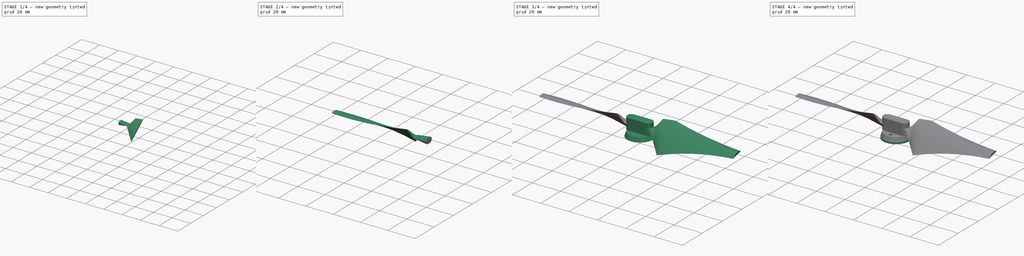
[diagram: build sequence overview — one tinted view per stage of 4, left to right]
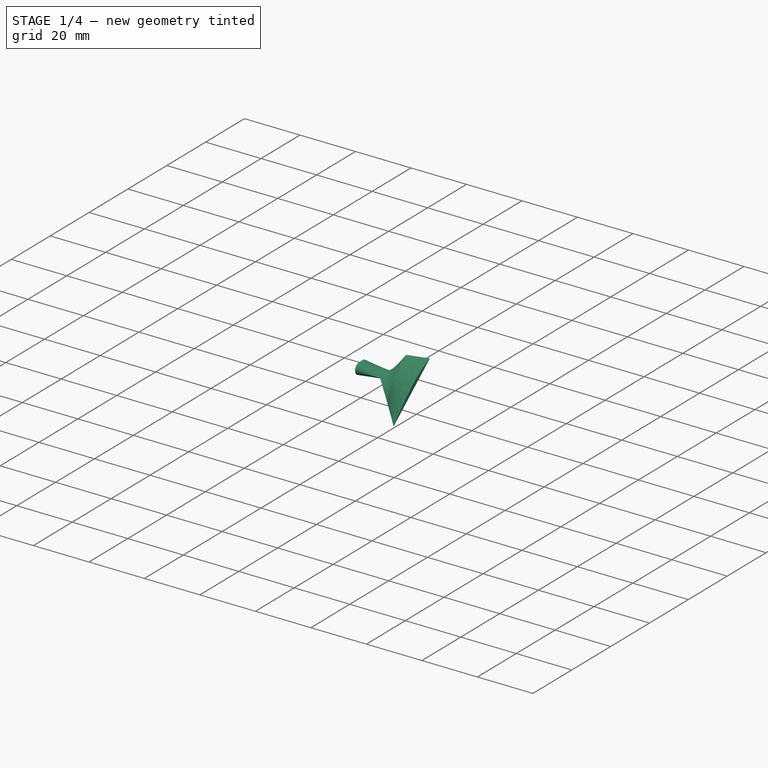
[diagram: stage 1 of 4 — iso view after this stage's code; geometry added in this stage tinted green]
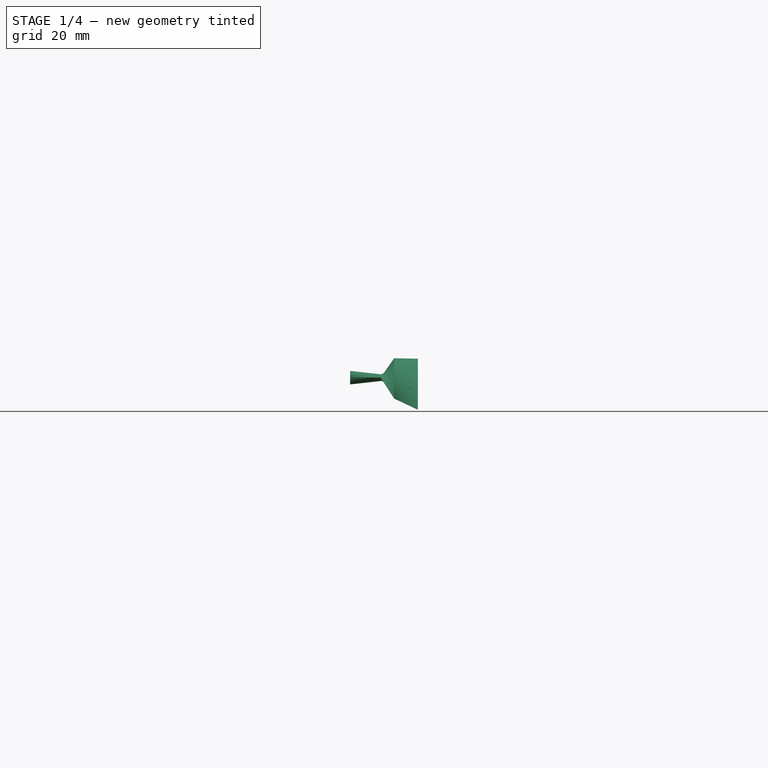
[diagram: stage 1 of 4 — front view after this stage's code; geometry added in this stage tinted green]
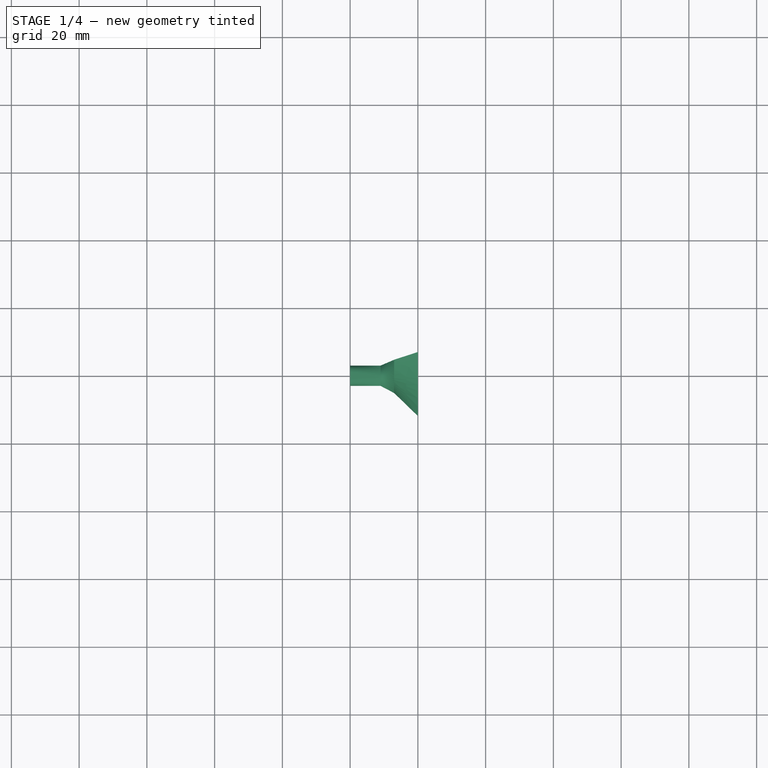
[diagram: stage 1 of 4 — top view after this stage's code; geometry added in this stage tinted green]
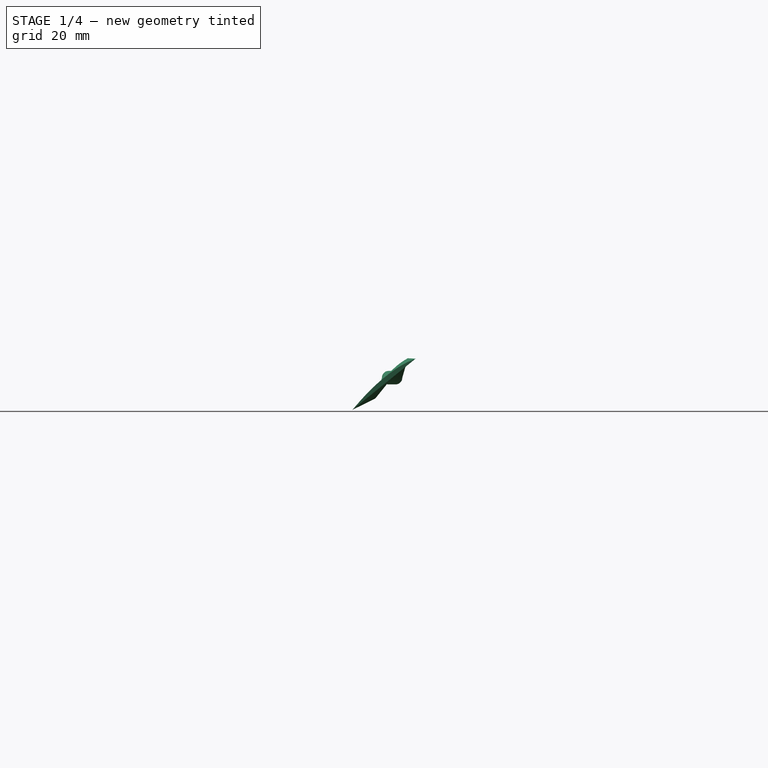
[diagram: stage 1 of 4 — right view after this stage's code; geometry added in this stage tinted green]
FCSTD DOCUMENT  (FreeCAD 0.20R29410 (Git))
Label: prop
License: All rights reserved
LicenseURL: http://en.wikipedia.org/wiki/All_rights_reserved
objects: Sketcher::SketchObject×12, Part::Fuse×4, Part::Loft×3, PartDesign::Pad×2, Part::FeaturePython×1, PartDesign::FeatureBase×1, PartDesign::Point×1, PartDesign::Plane×1, PartDesign::AdditiveLoft×1, PartDesign::Pocket×1, PartDesign::CoordinateSystem×1, PartDesign::Body×1
note: 33 computed .brp shape members not serialized (recipe doc carries the construction recipe); baked Part::Feature solids carry a one-line shape summary decoded from their .brp

FEATURE [Sketcher::SketchObject] Sketch
  FullyConstrained = true
  MapMode = 5
  Support = -> [XY_Plane]
  sketch-geometry (38):
    g0: LineSegment StartX=0 StartY=-3 StartZ=0 EndX=0 EndY=3 EndZ=0
    g1: LineSegment StartX=0 StartY=3 StartZ=0 EndX=9 EndY=3 EndZ=0
    g2: LineSegment StartX=0 StartY=-3 StartZ=0 EndX=9 EndY=-3 EndZ=0
    g3: LineSegment StartX=9 StartY=3 StartZ=0 EndX=19 EndY=7 EndZ=0
    g4: LineSegment StartX=19 StartY=7 StartZ=0 EndX=69 EndY=3 EndZ=0
    g5: LineSegment StartX=69 StartY=3 StartZ=0 EndX=69 EndY=-5 EndZ=0
    g6: LineSegment StartX=9 StartY=-3 StartZ=0 EndX=13 EndY=-5 EndZ=0
    g7: LineSegment StartX=13 StartY=-5 StartZ=0 EndX=18 EndY=-12 EndZ=0
    g8: LineSegment StartX=18 StartY=-12 StartZ=0 EndX=69 EndY=-5 EndZ=0
    g9: GeomPoint X=5 Y=0 Z=0
    g10: GeomPoint X=10 Y=0 Z=0
    g11: GeomPoint X=15 Y=0 Z=0
    g12: GeomPoint X=20 Y=0 Z=0
    g13: GeomPoint X=25 Y=0 Z=0
    g14: GeomPoint X=30 Y=0 Z=0
    g15: GeomPoint X=35 Y=0 Z=0
    g16: GeomPoint X=40 Y=0 Z=0
    g17: GeomPoint X=45 Y=0 Z=0
    g18: GeomPoint X=50 Y=0 Z=0
    g19: GeomPoint X=55 Y=0 Z=0
    g20: GeomPoint X=60 Y=0 Z=0
    g21: GeomPoint X=65 Y=0 Z=0
    g22: GeomPoint X=69 Y=0 Z=0
    g23: LineSegment StartX=0 StartY=16.18 StartZ=0 EndX=32.3915 EndY=-10.0247 EndZ=0
    g24: ArcOfCircle CenterX=20 CenterY=0 CenterZ=0 NormalX=0 NormalY=0 NormalZ=1 AngleXU=0 Radius=6.92 StartAngle=1.5708 EndAngle=3.14159
    g25: LineSegment StartX=13.08 StartY=8e-16 StartZ=0 EndX=13.08 EndY=5.59828 EndZ=0
    g26: ArcOfCircle CenterX=20 CenterY=0 CenterZ=0 NormalX=0 NormalY=0 NormalZ=1 AngleXU=0 Radius=11.7255 StartAngle=4.71239 EndAngle=6.28319
    g27: LineSegment StartX=31.7255 StartY=-2.9e-15 StartZ=0 EndX=31.7255 EndY=-9.48592 EndZ=0
    g28: LineSegment StartX=0 StartY=16.18 StartZ=0 EndX=87.6232 EndY=-4.367 EndZ=0
    g29: ArcOfCircle CenterX=69 CenterY=0 CenterZ=0 NormalX=0 NormalY=0 NormalZ=1 AngleXU=0 Radius=3 StartAngle=1.5708 EndAngle=3.14159
    g30: ArcOfCircle CenterX=69 CenterY=0 CenterZ=0 NormalX=0 NormalY=0 NormalZ=1 AngleXU=0 Radius=5 StartAngle=4.71239 EndAngle=6.28319
    g31: LineSegment StartX=66 StartY=4e-16 StartZ=0 EndX=66 EndY=0.703478 EndZ=0
    g32: LineSegment StartX=74 StartY=-1.2e-15 StartZ=0 EndX=74 EndY=-1.17246 EndZ=0
    g33: LineSegment StartX=0 StartY=16.18 StartZ=0 EndX=22.3034 EndY=-11.4093 EndZ=0
    g34: ArcOfCircle CenterX=13.08 CenterY=8e-16 CenterZ=0 NormalX=0 NormalY=0 NormalZ=1 AngleXU=0 Radius=4.632 StartAngle=1.5708 EndAngle=3.14159
    g35: ArcOfCircle CenterX=13.08 CenterY=8e-16 CenterZ=0 NormalX=0 NormalY=0 NormalZ=1 AngleXU=0 Radius=5.00064 StartAngle=4.69639 EndAngle=6.28319
    g36: LineSegment StartX=8.448 StartY=1.4e-15 StartZ=0 EndX=8.448 EndY=5.7298 EndZ=0
    g37: LineSegment StartX=18.0806 StartY=-4e-16 StartZ=0 EndX=18.0806 EndY=-6.18581 EndZ=0
  constraints (103):
    c: PointOnObject(g0,g-2)
    c: DistanceY(g0,g0) = 6
    c: Symmetric(g0,g0,g-1)
    c: Coincident(g1,g0)
    c: Horizontal(g1)
    c: Coincident(g2,g0)
    c: Horizontal(g2)
    c: Equal(g2,g1)
    c: DistanceX(g1,g1) = 9
    c: Coincident(g3,g1)
    c: DistanceX(g1,g3) = 10
    c: DistanceY(g1,g3) = 4
    c: Coincident(g4,g3)
    c: DistanceX(g3,g4) = 50
    c: DistanceY(g4,g3) = 4
    c: Coincident(g5,g4)
    c: Vertical(g5)
    c: DistanceY(g5,g5) = 8
    c: Coincident(g6,g2)
    c: DistanceY(g6,g2) = 2
    c: DistanceX(g2,g6) = 4
    c: Coincident(g7,g6)
    c: DistanceX(g6,g7) = 5
    c: DistanceY(g7,g6) = 7
    c: Coincident(g8,g7)
    c: Coincident(g8,g5)
    c: PointOnObject(g9,g-1)
    c: DistanceX(g-1,g9) = 5
    c: PointOnObject(g10,g-1)
    c: PointOnObject(g11,g-1)
    c: PointOnObject(g12,g-1)
    c: PointOnObject(g13,g-1)
    c: DistanceX(g10) = 10
    c: DistanceX(g11) = 15
    c: DistanceX(g12) = 20
    c: DistanceX(g13) = 25
    c: PointOnObject(g14,g-1)
    c: PointOnObject(g15,g-1)
    c: PointOnObject(g16,g-1)
    c: PointOnObject(g17,g-1)
    c: PointOnObject(g18,g-1)
    c: PointOnObject(g19,g-1)
    c: DistanceX(g14) = 30
    c: DistanceX(g15) = 35
    c: DistanceX(g16) = 40
    c: DistanceX(g17) = 45
    c: DistanceX(g18) = 50
    c: DistanceX(g19) = 55
    c: PointOnObject(g20,g-1)
    c: PointOnObject(g21,g-1)
    c: PointOnObject(g22,g5)
    c: PointOnObject(g22,g-1)
    c: DistanceX(g20) = 60
    c: DistanceX(g21) = 65
    c: PointOnObject(g23,g-2)
    c: DistanceY(g23) = 16.18
    c: PointOnObject(g12,g23)
    c: Coincident(g24,g12)
    c: PointOnObject(g24,g4)
    c: PointOnObject(g24,g-1)
    c: Coincident(g25,g24)
    c: PointOnObject(g25,g23)
    c: Vertical(g25)
    c: Vertical(g24,g12)
    c: PointOnObject(g23,g8)
    c: Coincident(g26,g12)
    c: PointOnObject(g26,g8)
    c: PointOnObject(g26,g-1)
    c: Vertical(g26,g12)
    c: Coincident(g27,g26)
    c: Vertical(g27)
    c: PointOnObject(g27,g23)
    c: Coincident(g28,g23)
    c: PointOnObject(g22,g28)
    c: Distance(g28) = 90
    c: Coincident(g29,g22)
    c: Coincident(g29,g4)
    c: PointOnObject(g29,g-1)
    c: Coincident(g30,g22)
    c: Coincident(g30,g5)
    c: PointOnObject(g30,g-1)
    c: Coincident(g31,g29)
    c: PointOnObject(g31,g28)
    c: Vertical(g31)
    c: Coincident(g32,g30)
    c: PointOnObject(g32,g28)
    c: Vertical(g32)
    c: Coincident(g33,g23)
    c: PointOnObject(g33,g8)
    c: PointOnObject(g24,g33)
    c: Coincident(g34,g24)
    c: PointOnObject(g34,g3)
    c: PointOnObject(g34,g-1)
    c: Coincident(g35,g24)
    c: Coincident(g35,g6)
    c: PointOnObject(g35,g-1)
    c: Vertical(g34,g24)
    c: Coincident(g36,g34)
    c: PointOnObject(g36,g33)
    c: Vertical(g36)
    c: Coincident(g37,g35)
    c: PointOnObject(g37,g33)
    c: Vertical(g37)
FEATURE [Sketcher::SketchObject] Sketch001
  FullyConstrained = true
  Placement = pos=(20,0,0) rot=(0.57735,0.57735,0.57735;2.0944rad)
  sketch-geometry (8):
    g0: LineSegment StartX=-11.7243 StartY=-9.48401 StartZ=0 EndX=6.91953 EndY=5.59733 EndZ=0
    g1: LineSegment StartX=0 StartY=0 StartZ=0 EndX=-1.88674 EndY=2.33243 EndZ=0
    g2: Circle CenterX=-11.7243 CenterY=-9.48401 CenterZ=0 NormalX=0 NormalY=0 NormalZ=1 AngleXU=0 Radius=1
    g3: Circle CenterX=-1.88674 CenterY=2.33243 CenterZ=0 NormalX=0 NormalY=0 NormalZ=1 AngleXU=0 Radius=1
    g4: Circle CenterX=6.91953 CenterY=5.59733 CenterZ=0 NormalX=0 NormalY=0 NormalZ=1 AngleXU=0 Radius=1
    g5: BSplineCurve PolesCount=3 KnotsCount=2 Degree=2 IsPeriodic=0
    g6: GeomPoint X=-11.7243 Y=-9.48401 Z=0
    g7: GeomPoint X=6.91953 Y=5.59733 Z=0
  constraints (18):
    c: PointOnObject(g-1,g0)
    c: Distance(g-1,g0) = 8.9
    c: Distance(g-1,g0) = 15.08
    c: Angle(g0,g-1) = 2.46144
    c: Coincident(g1,g-1)
    c: Distance(g1) = 3
    c: Angle(g1,g0) = 1.5708
    c: Weight(g2) = 1
    c: Coincident(g5,g0)
    c: Equal(g2,g3)
    c: Coincident(g3,g1)
    c: Equal(g2,g4)
    c: Coincident(g5,g0)
    c: InternalAlignment(g2,g5)
    c: InternalAlignment(g3,g5)
    c: InternalAlignment(g4,g5)
    c: InternalAlignment(g6,g5)
    c: InternalAlignment(g7,g5)
FEATURE [Sketcher::SketchObject] Sketch002
  FullyConstrained = true
  Placement = pos=(50,0,0) rot=(0.57735,0.57735,0.57735;2.0944rad)
  sketch-geometry (8):
    g0: LineSegment StartX=-7.60195 StartY=-2.45976 StartZ=0 EndX=4.51931 EndY=1.46231 EndZ=0
    g1: LineSegment StartX=0 StartY=0 StartZ=0 EndX=-0.923564 EndY=2.8543 EndZ=0
    g2: Circle CenterX=4.51931 CenterY=1.46231 CenterZ=0 NormalX=0 NormalY=0 NormalZ=1 AngleXU=0 Radius=1
    g3: Circle CenterX=-0.923564 CenterY=2.8543 CenterZ=0 NormalX=0 NormalY=0 NormalZ=1 AngleXU=0 Radius=1
    g4: Circle CenterX=-7.60195 CenterY=-2.45976 CenterZ=0 NormalX=0 NormalY=0 NormalZ=1 AngleXU=0 Radius=1
    g5: BSplineCurve PolesCount=3 KnotsCount=2 Degree=2 IsPeriodic=0
    g6: GeomPoint X=4.51931 Y=1.46231 Z=0
    g7: GeomPoint X=-7.60195 Y=-2.45976 Z=0
  constraints (18):
    c: PointOnObject(g-1,g0)
    c: Distance(g-1,g0) = 4.75
    c: Distance(g-1,g0) = 7.99
    c: Angle(g0,g-1) = 2.82866
    c: Coincident(g1,g-1)
    c: Angle(g1,g0) = 1.5708
    c: Distance(g1) = 3
    c: Weight(g2) = 1
    c: Coincident(g5,g0)
    c: Equal(g2,g3)
    c: Coincident(g3,g1)
    c: Equal(g2,g4)
    c: Coincident(g5,g0)
    c: InternalAlignment(g2,g5)
    c: InternalAlignment(g3,g5)
    c: InternalAlignment(g4,g5)
    c: InternalAlignment(g6,g5)
    c: InternalAlignment(g7,g5)
FEATURE [Sketcher::SketchObject] Sketch003
  FullyConstrained = true
  Placement = pos=(69,0,0) rot=(0.57735,0.57735,0.57735;2.0944rad)
  sketch-geometry (8):
    g0: LineSegment StartX=-4.99466 StartY=-1.17057 StartZ=0 EndX=2.99875 EndY=0.702797 EndZ=0
    g1: LineSegment StartX=0 StartY=0 StartZ=0 EndX=-0.684543 EndY=2.92086 EndZ=0
    g2: Circle CenterX=2.99875 CenterY=0.702797 CenterZ=0 NormalX=0 NormalY=0 NormalZ=1 AngleXU=0 Radius=1
    g3: Circle CenterX=-0.684543 CenterY=2.92086 CenterZ=0 NormalX=0 NormalY=0 NormalZ=1 AngleXU=0 Radius=1
    g4: Circle CenterX=-4.99466 CenterY=-1.17057 CenterZ=0 NormalX=0 NormalY=0 NormalZ=1 AngleXU=0 Radius=1
    g5: BSplineCurve PolesCount=3 KnotsCount=2 Degree=2 IsPeriodic=0
    g6: GeomPoint X=2.99875 Y=0.702797 Z=0
    g7: GeomPoint X=-4.99466 Y=-1.17057 Z=0
  constraints (18):
    c: PointOnObject(g-1,g0)
    c: Angle(g0,g-1) = 2.91138
    c: Coincident(g1,g-1)
    c: Angle(g1,g0) = 1.5708
    c: Distance(g1) = 3
    c: Distance(g1,g0) = 3.08
    c: Distance(g1,g0) = 5.13
    c: Weight(g2) = 1
    c: Coincident(g5,g0)
    c: Equal(g2,g3)
    c: Coincident(g3,g1)
    c: Equal(g2,g4)
    c: Coincident(g5,g0)
    c: InternalAlignment(g2,g5)
    c: InternalAlignment(g3,g5)
    c: InternalAlignment(g4,g5)
    c: InternalAlignment(g6,g5)
    c: InternalAlignment(g7,g5)
FEATURE [Sketcher::SketchObject] Sketch004
  FullyConstrained = true
  Placement = pos=(0,0,0) rot=(0.57735,0.57735,0.57735;2.0944rad)
  sketch-geometry (4):
    g0: ArcOfCircle CenterX=-1 CenterY=0 CenterZ=0 NormalX=0 NormalY=0 NormalZ=1 AngleXU=0 Radius=2 StartAngle=1.5708 EndAngle=4.71239
    g1: ArcOfCircle CenterX=1 CenterY=0 CenterZ=0 NormalX=0 NormalY=0 NormalZ=1 AngleXU=0 Radius=2 StartAngle=4.71239 EndAngle=7.85398
    g2: LineSegment StartX=-1 StartY=-2 StartZ=0 EndX=1 EndY=-2 EndZ=0
    g3: LineSegment StartX=1 StartY=2 StartZ=0 EndX=-1 EndY=2 EndZ=0
  constraints (9):
    c: Tangent(g0,g2) = -1.5708
    c: Tangent(g2,g1) = -1.5708
    c: Tangent(g1,g3) = -1.5708
    c: Tangent(g3,g0) = -1.5708
    c: Equal(g0,g1)
    c: PointOnObject(g0,g-1)
    c: Symmetric(g0,g1,g-2)
    c: DistanceY(g1,g1) = 4
    c: DistanceX(g0,g1) = 2
FEATURE [Sketcher::SketchObject] Sketch005
  FullyConstrained = true
  Placement = pos=(9,0,0) rot=(0.57735,0.57735,0.57735;2.0944rad)
  sketch-geometry (7):
    g0: Circle CenterX=3 CenterY=0 CenterZ=0 NormalX=0 NormalY=0 NormalZ=1 AngleXU=0 Radius=1
    g1: Circle CenterX=0 CenterY=2 CenterZ=0 NormalX=0 NormalY=0 NormalZ=1 AngleXU=0 Radius=1
    g2: Circle CenterX=-3 CenterY=4e-16 CenterZ=0 NormalX=0 NormalY=0 NormalZ=1 AngleXU=0 Radius=1
    g3: BSplineCurve PolesCount=3 KnotsCount=2 Degree=2 IsPeriodic=0
    g4: GeomPoint X=3 Y=0 Z=0
    g5: GeomPoint X=-3 Y=4e-16 Z=0
    g6: ArcOfCircle CenterX=0 CenterY=4 CenterZ=0 NormalX=0 NormalY=0 NormalZ=1 AngleXU=0 Radius=5 StartAngle=4.06889 EndAngle=5.35589
  constraints (17):
    c: Weight(g0) = 1
    c: PointOnObject(g3,g-1)
    c: Equal(g0,g1)
    c: PointOnObject(g1,g-2)
    c: Equal(g0,g2)
    c: InternalAlignment(g0,g3)
    c: InternalAlignment(g1,g3)
    c: InternalAlignment(g2,g3)
    c: InternalAlignment(g4,g3)
    c: InternalAlignment(g5,g3)
    c: DistanceY(g-1,g1) = 2
    c: PointOnObject(g6,g-2)
    c: Coincident(g6,g3)
    c: Coincident(g6,g3)
    c: PointOnObject(g3,g-1)
    c: DistanceX(g3,g3) = 6
    c: Diameter(g6) = 10
FEATURE [Sketcher::SketchObject] Sketch006
  FullyConstrained = true
  Placement = pos=(13,0,0) rot=(0.57735,0.57735,0.57735;2.0944rad)
  sketch-geometry (8):
    g0: LineSegment StartX=-4.99878 StartY=-6.1818 StartZ=0 EndX=4.63409 EndY=5.7308 EndZ=0
    g1: LineSegment StartX=0 StartY=0 StartZ=0 EndX=-2.33276 EndY=1.88633 EndZ=0
    g2: Circle CenterX=4.63409 CenterY=5.7308 CenterZ=0 NormalX=0 NormalY=0 NormalZ=1 AngleXU=0 Radius=1
    g3: Circle CenterX=-2.33276 CenterY=1.88633 CenterZ=0 NormalX=0 NormalY=0 NormalZ=1 AngleXU=0 Radius=1
    g4: Circle CenterX=-4.99878 CenterY=-6.1818 CenterZ=0 NormalX=0 NormalY=0 NormalZ=1 AngleXU=0 Radius=1
    g5: BSplineCurve PolesCount=3 KnotsCount=2 Degree=2 IsPeriodic=0
    g6: GeomPoint X=4.63409 Y=5.7308 Z=0
    g7: GeomPoint X=-4.99878 Y=-6.1818 Z=0
  constraints (18):
    c: PointOnObject(g-1,g0)
    c: Distance(g-1,g0) = 7.37
    c: Distance(g-1,g0) = 7.95
    c: Angle(g0,g-1) = 2.25078
    c: Coincident(g1,g-1)
    c: Angle(g1,g0) = 1.5708
    c: Distance(g1) = 3
    c: Weight(g2) = 1
    c: Coincident(g5,g0)
    c: Equal(g2,g3)
    c: Coincident(g3,g1)
    c: Equal(g2,g4)
    c: Coincident(g5,g0)
    c: InternalAlignment(g2,g5)
    c: InternalAlignment(g3,g5)
    c: InternalAlignment(g4,g5)
    c: InternalAlignment(g6,g5)
    c: InternalAlignment(g7,g5)
FEATURE [Part::Loft] Loft
  Closed = false
  MaxDegree = 5
  Ruled = false
  Sections = -> [Sketch004,Sketch005]
  Solid = true
FEATURE [Part::Loft] Loft001
  Closed = false
  MaxDegree = 5
  Ruled = true
  Sections = -> [Sketch005,Sketch006,Sketch001]
  Solid = true
FEATURE [Part::Fuse] Fusion
  Base = -> Loft
  Tool = -> Loft001
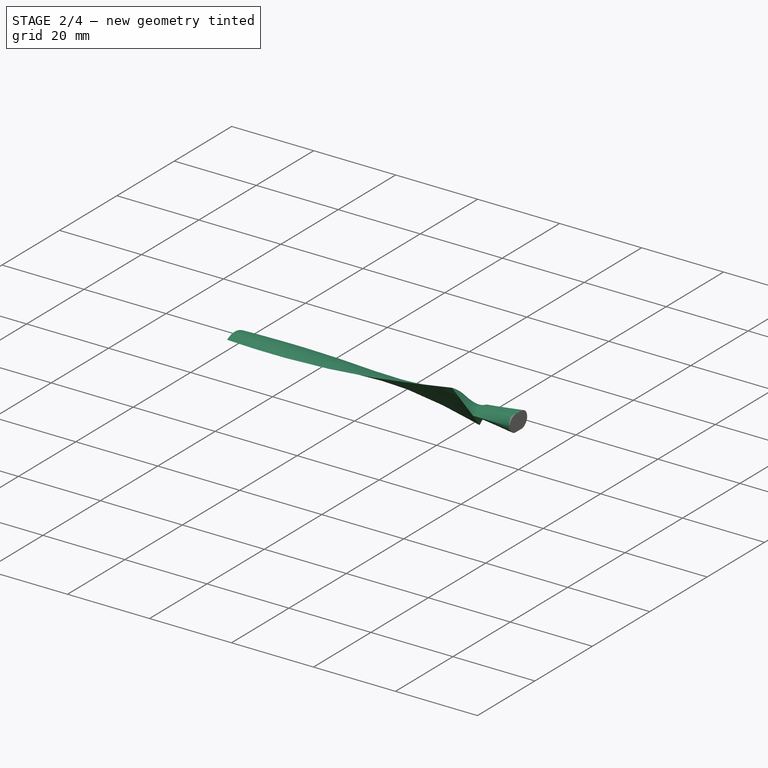
[diagram: stage 2 of 4 — iso view after this stage's code; geometry added in this stage tinted green]
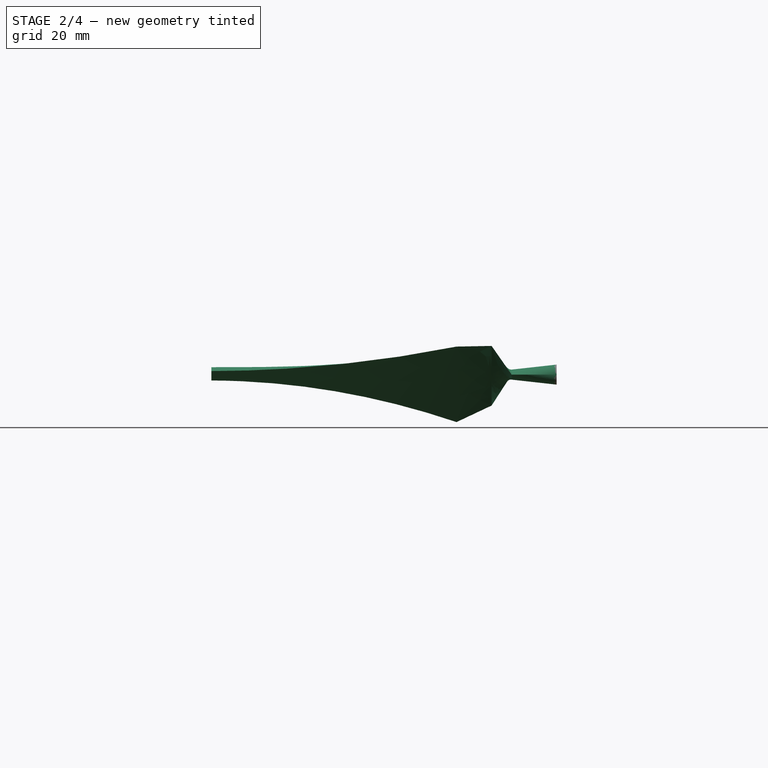
[diagram: stage 2 of 4 — front view after this stage's code; geometry added in this stage tinted green]
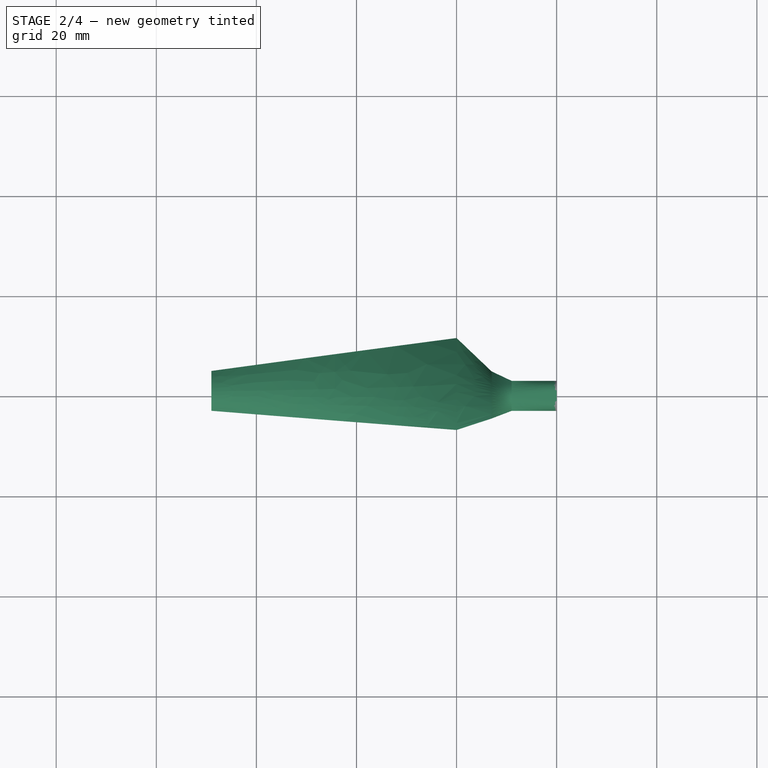
[diagram: stage 2 of 4 — top view after this stage's code; geometry added in this stage tinted green]
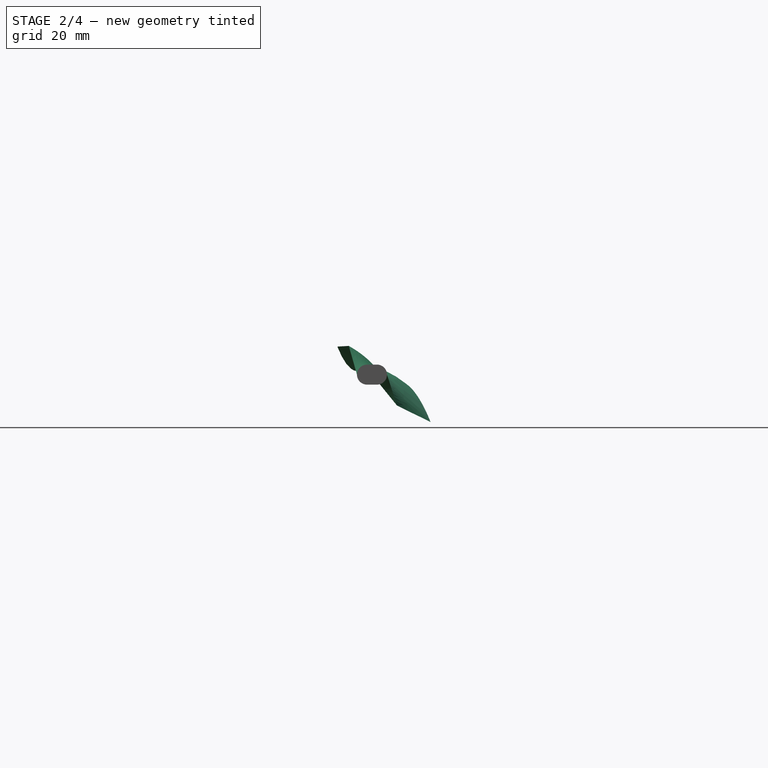
[diagram: stage 2 of 4 — right view after this stage's code; geometry added in this stage tinted green]
FEATURE [Part::Loft] Loft002
  Closed = false
  MaxDegree = 5
  Ruled = false
  Sections = -> [Sketch001,Sketch002,Sketch003]
  Solid = true
FEATURE [Part::Fuse] Fusion002
  Base = -> Fusion
  Tool = -> Loft002
FEATURE [Part::FeaturePython] Clone  label="Fusion003"  # Draft clone (typed FeaturePython)
  AttacherType = Attacher::AttachEngine3D
  Fuse = false
  Objects = -> [Fusion002]
  Placement = pos=(0,0,0) rot=(0,0,1;3.14159rad)
  Scale = (1,1,1)
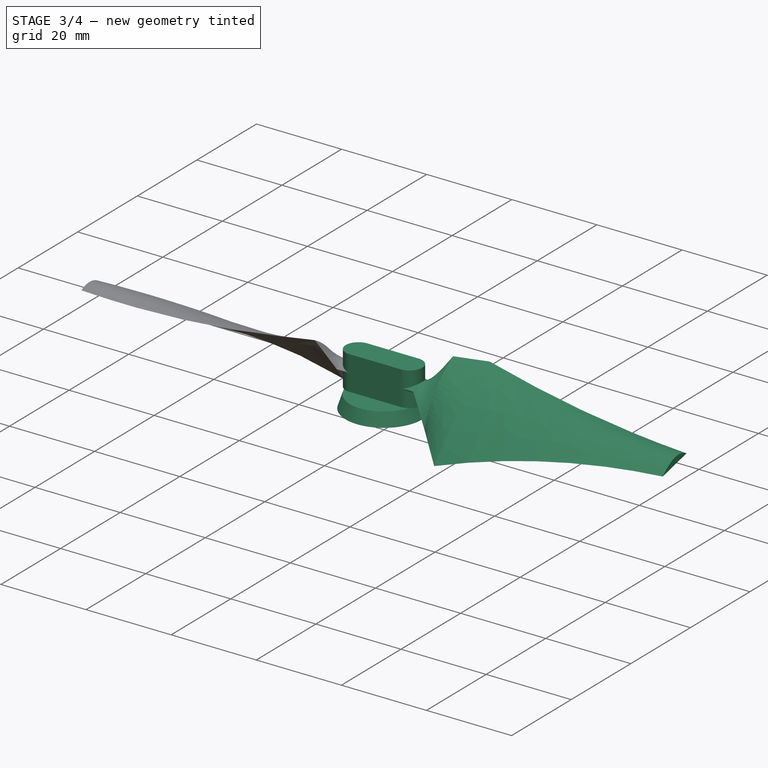
[diagram: stage 3 of 4 — iso view after this stage's code; geometry added in this stage tinted green]
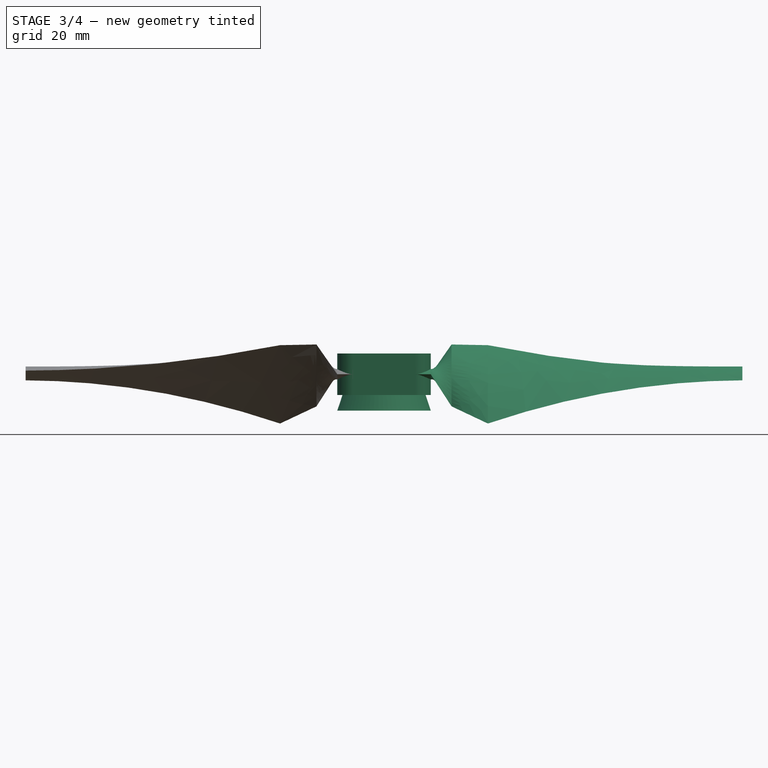
[diagram: stage 3 of 4 — front view after this stage's code; geometry added in this stage tinted green]
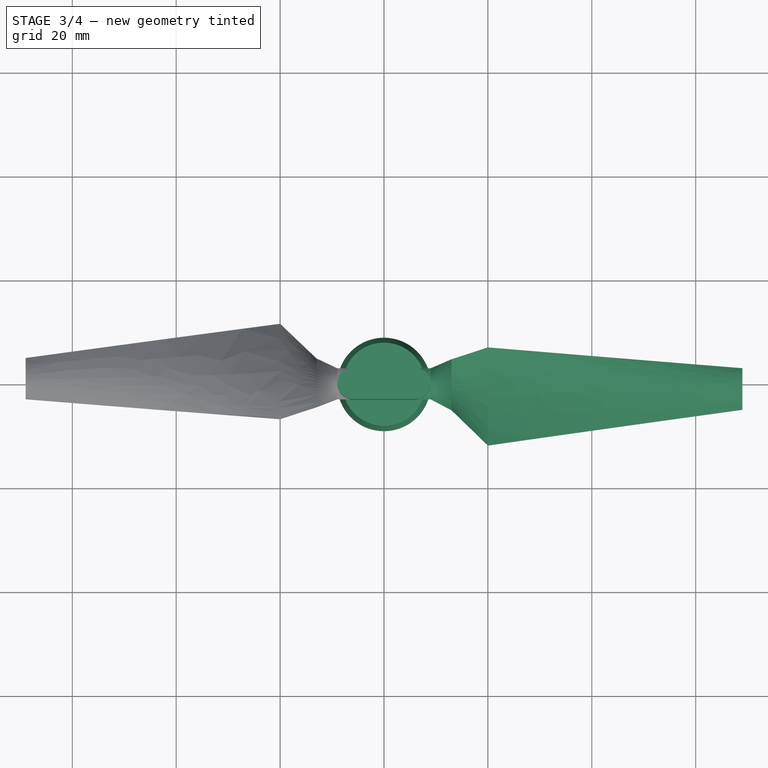
[diagram: stage 3 of 4 — top view after this stage's code; geometry added in this stage tinted green]
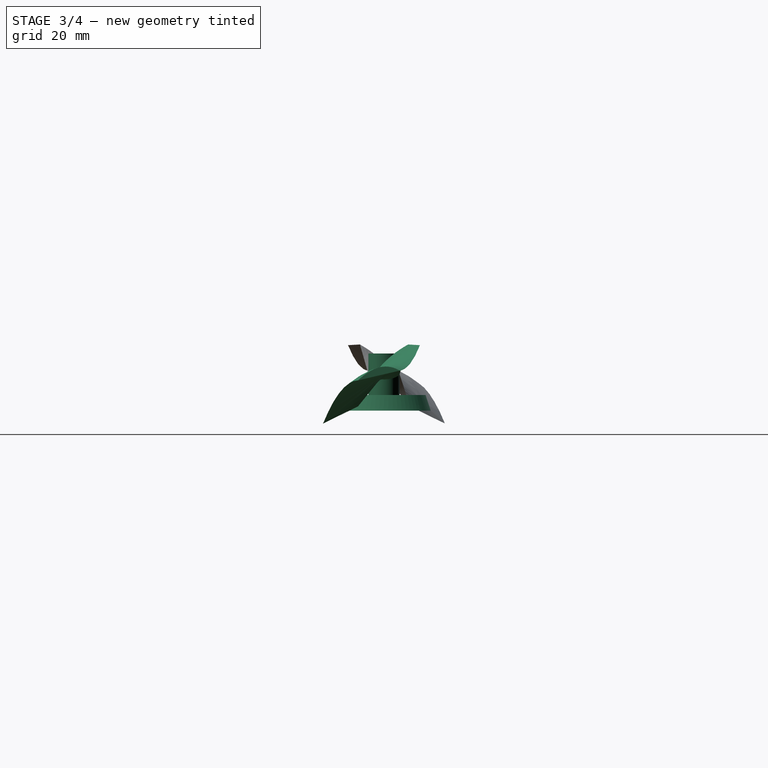
[diagram: stage 3 of 4 — right view after this stage's code; geometry added in this stage tinted green]
FEATURE [Part::Fuse] Fusion003  label="Fusion004"
  Base = -> Fusion002
  Tool = -> Clone
FEATURE [PartDesign::FeatureBase] BaseFeature
  BaseFeature = -> Fusion003
FEATURE [Sketcher::SketchObject] Sketch007
  FullyConstrained = true
  sketch-geometry (4):
    g0: ArcOfCircle CenterX=-6 CenterY=0 CenterZ=0 NormalX=0 NormalY=0 NormalZ=1 AngleXU=0 Radius=3 StartAngle=1.5708 EndAngle=4.71239
    g1: ArcOfCircle CenterX=6 CenterY=0 CenterZ=0 NormalX=0 NormalY=0 NormalZ=1 AngleXU=0 Radius=3 StartAngle=4.71239 EndAngle=7.85398
    g2: LineSegment StartX=-6 StartY=-3 StartZ=0 EndX=6 EndY=-3 EndZ=0
    g3: LineSegment StartX=6 StartY=3 StartZ=0 EndX=-6 EndY=3 EndZ=0
  constraints (9):
    c: Tangent(g0,g2) = -1.5708
    c: Tangent(g2,g1) = -1.5708
    c: Tangent(g1,g3) = -1.5708
    c: Tangent(g3,g0) = -1.5708
    c: Equal(g0,g1)
    c: PointOnObject(g0,g-1)
    c: Symmetric(g0,g1,g-2)
    c: DistanceY(g1,g1) = 6
    c: DistanceX(g0,g1) = 12
FEATURE [PartDesign::Pad] Pad
  BaseFeature = -> BaseFeature
  Direction = (0,0,1)
  Length = 8
  Length2 = 10
  Midplane = true
  Profile = -> Sketch007
  ReferenceAxis = -> Sketch007 [N_Axis]
  Type = 0
FEATURE [Sketcher::SketchObject] Sketch008
  FullyConstrained = true
  MapMode = 5
  Placement = pos=(0,0,-4) rot=(1,0,0;3.14159rad)
  Support = -> [Pad]
  sketch-geometry (1):
    g0: Circle CenterX=0 CenterY=0 CenterZ=0 NormalX=0 NormalY=0 NormalZ=1 AngleXU=0 Radius=8
  constraints (2):
    c: Coincident(g0,g-1)
    c: Diameter(g0) = 16
FEATURE [PartDesign::Point] DatumPoint
  AttacherType = Attacher::AttachEnginePoint
  AttachmentOffset = pos=(0,0,-3) rot=(0,0,1;0rad)
  MapMode = 37
  Placement = pos=(-2e-16,-1e-16,-7) rot=(0,0,1;0rad)
  Support = -> [Pad]
FEATURE [PartDesign::Plane] DatumPlane
  Length = 154.613
  MapMode = 1
  Placement = pos=(-2e-16,-1e-16,-7) rot=(0,0,1;0rad)
  ResizeMode = 0
  Support = -> [DatumPoint]
  Width = 66.6132
FEATURE [Sketcher::SketchObject] Sketch009
  FullyConstrained = true
  MapMode = 5
  Placement = pos=(-2e-16,-1e-16,-7) rot=(0,0,1;0rad)
  Support = -> [DatumPlane]
  sketch-geometry (1):
    g0: Circle CenterX=0 CenterY=0 CenterZ=0 NormalX=0 NormalY=0 NormalZ=1 AngleXU=0 Radius=9
  constraints (2):
    c: Coincident(g0,g-1)
    c: Diameter(g0) = 18
FEATURE [PartDesign::AdditiveLoft] AdditiveLoft
  BaseFeature = -> Pad
  Closed = false
  Profile = -> Sketch008
  Ruled = false
  Sections = -> [Sketch009]
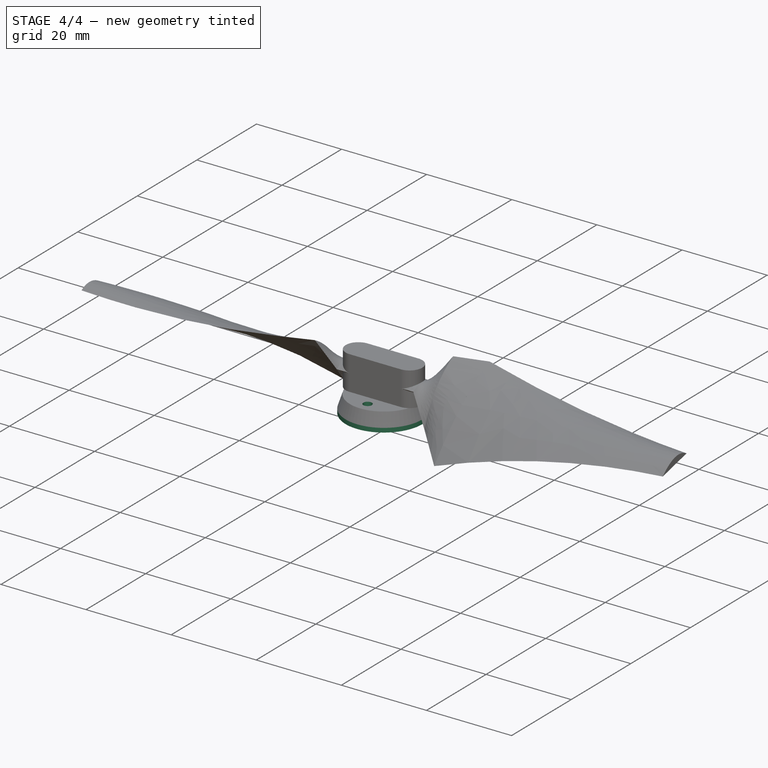
[diagram: stage 4 of 4 — iso view after this stage's code; geometry added in this stage tinted green]
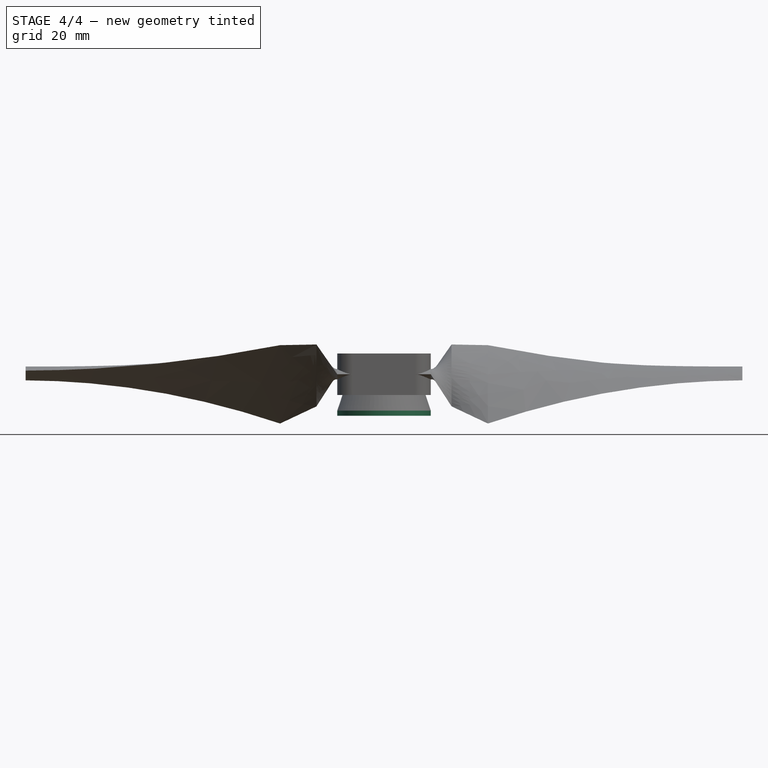
[diagram: stage 4 of 4 — front view after this stage's code; geometry added in this stage tinted green]
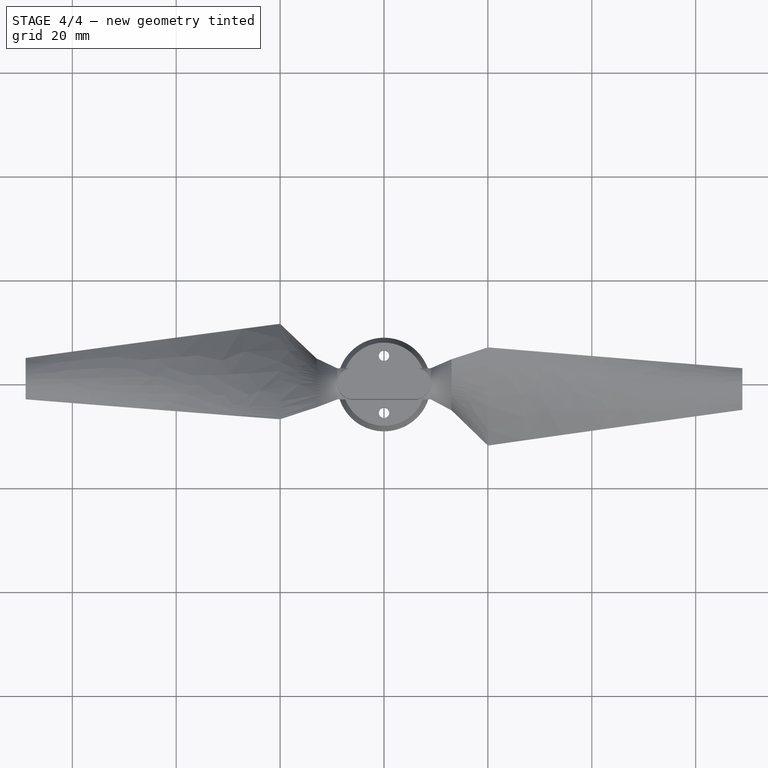
[diagram: stage 4 of 4 — top view after this stage's code; geometry added in this stage tinted green]
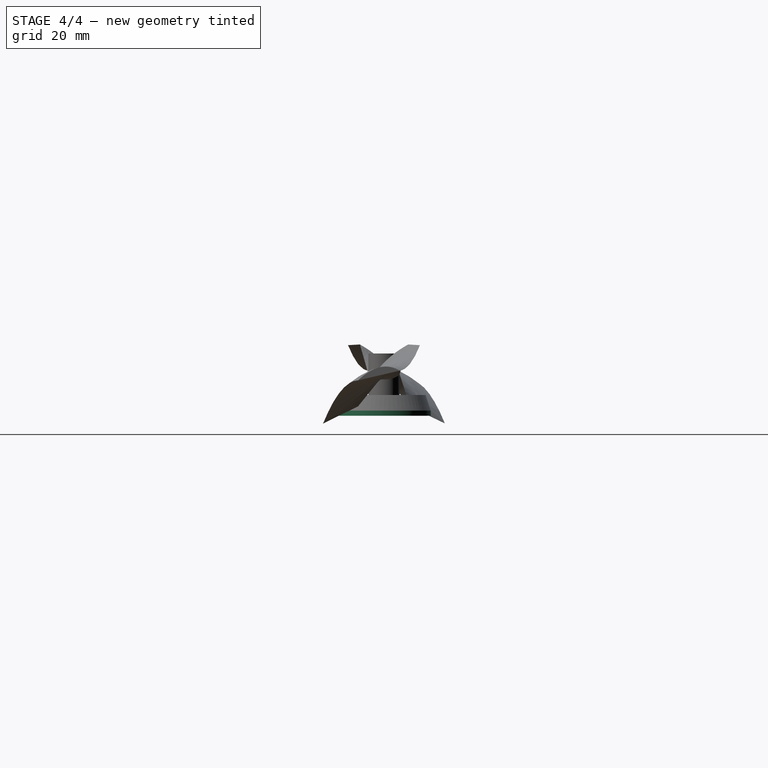
[diagram: stage 4 of 4 — right view after this stage's code; geometry added in this stage tinted green]
FEATURE [Part::Fuse] Fusion001
  Base = -> Loft
  Tool = -> Loft001
FEATURE [Sketcher::SketchObject] Sketch010
  FullyConstrained = true
  MapMode = 5
  Placement = pos=(0,0,-4) rot=(0,0,1;0rad)
  Support = -> [AdditiveLoft]
  sketch-geometry (2):
    g0: Circle CenterX=0 CenterY=5.5 CenterZ=0 NormalX=0 NormalY=0 NormalZ=1 AngleXU=0 Radius=1
    g1: Circle CenterX=0 CenterY=-5.5 CenterZ=0 NormalX=0 NormalY=0 NormalZ=1 AngleXU=0 Radius=1
  constraints (5):
    c: PointOnObject(g0,g-2)
    c: Equal(g1,g0)
    c: Diameter(g0) = 2
    c: DistanceY(g1,g0) = 11
    c: Symmetric(g1,g0,g-1)
FEATURE [PartDesign::Pocket] Pocket
  BaseFeature = -> AdditiveLoft
  Direction = (0,0,-1)
  Length = 5
  Length2 = 5
  Profile = -> Sketch010
  ReferenceAxis = -> Sketch010 [N_Axis]
  Type = 1
FEATURE [Sketcher::SketchObject] Sketch011
  ExternalGeometry = -> [Pocket]
  FullyConstrained = true
  MapMode = 5
  Placement = pos=(0,0,-7) rot=(1,0,0;3.14159rad)
  Support = -> [Pocket]
  sketch-geometry (2):
    g0: Circle CenterX=0 CenterY=0 CenterZ=0 NormalX=0 NormalY=0 NormalZ=1 AngleXU=0 Radius=9
    g1: Circle CenterX=0 CenterY=0 CenterZ=0 NormalX=0 NormalY=0 NormalZ=1 AngleXU=0 Radius=8.2
  constraints (4):
    c: Coincident(g0,g-3)
    c: Equal(g0,g-3)
    c: Coincident(g1,g0)
    c: Diameter(g1) = 16.4
FEATURE [PartDesign::Pad] Pad001
  BaseFeature = -> Pocket
  Direction = (0,0,-1)
  Length = 1
  Length2 = 10
  Profile = -> Sketch011
  ReferenceAxis = -> Sketch011 [N_Axis]
  Type = 0
FEATURE [PartDesign::CoordinateSystem] LCS_1
  AttacherType = Attacher::AttachEngine3D
  MapMode = 11
  Placement = pos=(-1.8e-15,0,-7) rot=(0.707107,-0.707107,0;3.14159rad)
  Support = -> [Pad001]
FEATURE [PartDesign::Body] Body
  BaseFeature = -> Fusion003
  Group = -> [BaseFeature,Sketch,Sketch001,Sketch002,Sketch003,Sketch004,Sketch005,Sketch006,Sketch007,Pad,Sketch008,DatumPoint,DatumPlane,Sketch009,AdditiveLoft,Sketch010,Pocket,Sketch011,Pad001,LCS_1]
  Origin = -> Origin
  Tip = -> Pad001
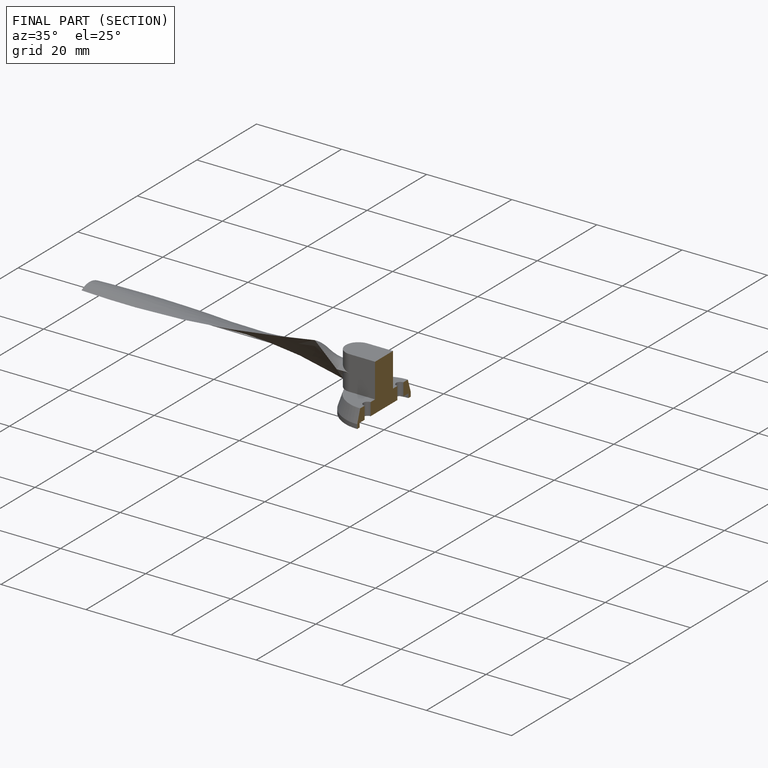
[diagram: finished part — half-section view (interior)]
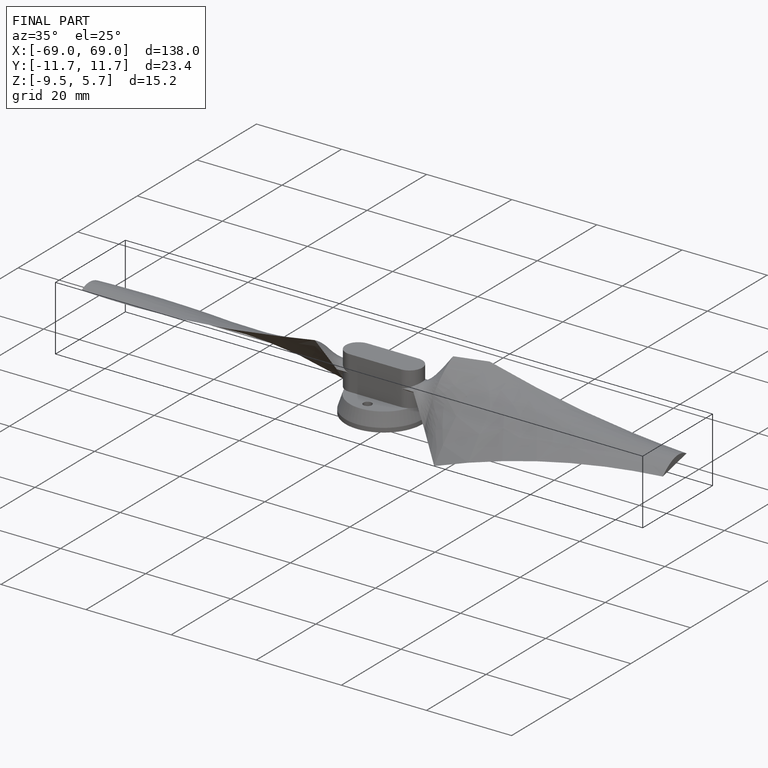
[diagram: finished part — iso view with bounding-box wireframe]
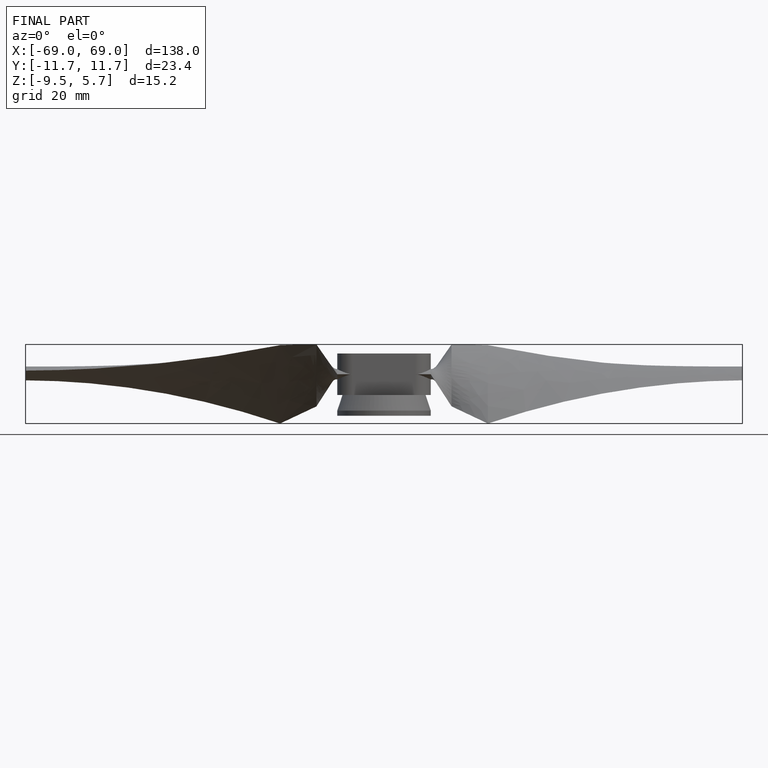
[diagram: finished part — front view with bounding-box wireframe]
